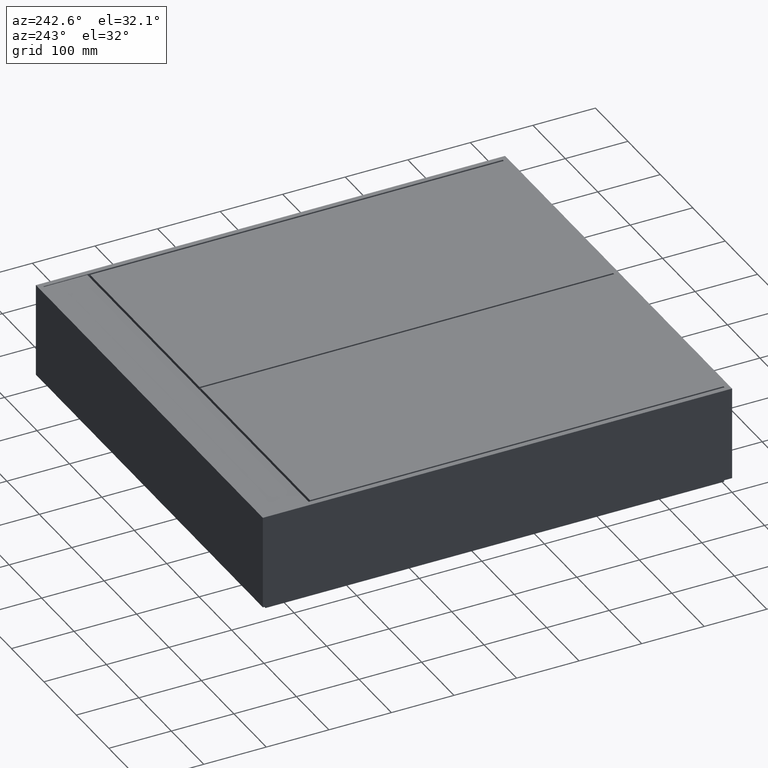
[diagram: clean part render]
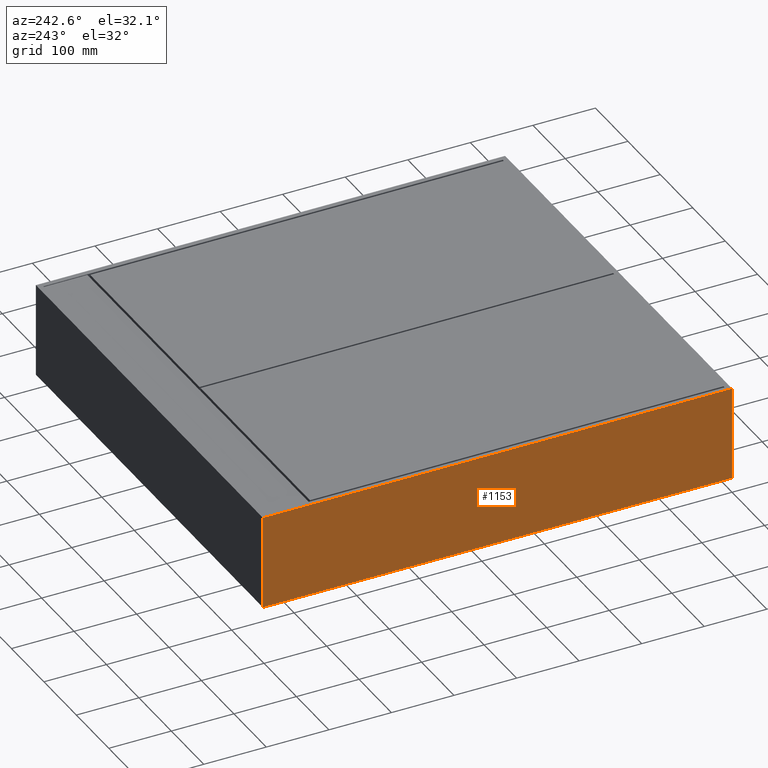
[diagram: same view with one face highlighted and labeled with its STEP entity id]
A machine part, auxiliary view. The second image highlights one B-rep face of the part: STEP entity #1153.
In plain terms, the highlighted planar face has unit normal (1, 0, -0).
Its self-contained STEP definition (entity closure, byte-faithful):
#18 = DIRECTION ( 'NONE',  ( -2.407412430484044816E-35, -1.000000000000000000, -4.877831358172164243E-34 ) ) ;
#204 = VECTOR ( 'NONE', #3315, 1000.000000000000000 ) ;
#311 = VECTOR ( 'NONE', #8339, 1000.000000000000000 ) ;
#345 = EDGE_CURVE ( 'NONE', #1377, #9204, #7827, .T. ) ;
#1106 = LINE ( 'NONE', #4716, #311 ) ;
#1153 = ADVANCED_FACE ( 'NONE', ( #3208 ), #6830, .F. ) ;
#1377 = VERTEX_POINT ( 'NONE', #1721 ) ;
#1721 = CARTESIAN_POINT ( 'NONE',  ( -8.673617379884035472E-16, 750.0000000000000000, -150.0000000000000000 ) ) ;
#2311 = DIRECTION ( 'NONE',  ( 1.000000000000000000, 2.407412430484044816E-35, -1.174295184546853926E-68 ) ) ;
#2419 = CARTESIAN_POINT ( 'NONE',  ( 0.0000000000000000000, 0.0000000000000000000, 0.0000000000000000000 ) ) ;
#2872 = DIRECTION ( 'NONE',  ( 0.0000000000000000000, 4.877831358172164243E-34, 1.000000000000000000 ) ) ;
#3208 = FACE_OUTER_BOUND ( 'NONE', #9550, .T. ) ;
#3315 = DIRECTION ( 'NONE',  ( 0.0000000000000000000, 4.877831358172164243E-34, 1.000000000000000000 ) ) ;
#3803 = ORIENTED_EDGE ( 'NONE', *, *, #345, .F. ) ;
#3929 = VERTEX_POINT ( 'NONE', #6755 ) ;
#4215 = EDGE_CURVE ( 'NONE', #3929, #9953, #7393, .T. ) ;
#4509 = LINE ( 'NONE', #8141, #10145 ) ;
#4716 = CARTESIAN_POINT ( 'NONE',  ( 0.0000000000000000000, 900.2131818450031915, 0.0000000000000000000 ) ) ;
#5947 = DIRECTION ( 'NONE',  ( 0.0000000000000000000, -4.877831358172164243E-34, -1.000000000000000000 ) ) ;
#6092 = EDGE_CURVE ( 'NONE', #9204, #9953, #1106, .T. ) ;
#6324 = ORIENTED_EDGE ( 'NONE', *, *, #6092, .F. ) ;
#6755 = CARTESIAN_POINT ( 'NONE',  ( -8.673617379884035472E-16, 0.0000000000000000000, -150.0000000000000000 ) ) ;
#6830 = PLANE ( 'NONE',  #11379 ) ;
#7203 = CARTESIAN_POINT ( 'NONE',  ( 0.0000000000000000000, 750.0000000000000000, 0.0000000000000000000 ) ) ;
#7393 = LINE ( 'NONE', #10987, #7490 ) ;
#7490 = VECTOR ( 'NONE', #2872, 1000.000000000000000 ) ;
#7827 = LINE ( 'NONE', #11419, #204 ) ;
#8141 = CARTESIAN_POINT ( 'NONE',  ( -8.673617379884035472E-16, 900.2131818450031915, -150.0000000000000000 ) ) ;
#8339 = DIRECTION ( 'NONE',  ( -2.407412430484044816E-35, -1.000000000000000000, -4.877831358172164243E-34 ) ) ;
#8816 = ORIENTED_EDGE ( 'NONE', *, *, #10893, .T. ) ;
#9204 = VERTEX_POINT ( 'NONE', #7203 ) ;
#9391 = ORIENTED_EDGE ( 'NONE', *, *, #4215, .T. ) ;
#9550 = EDGE_LOOP ( 'NONE', ( #3803, #8816, #9391, #6324 ) ) ;
#9953 = VERTEX_POINT ( 'NONE', #2419 ) ;
#10145 = VECTOR ( 'NONE', #18, 1000.000000000000000 ) ;
#10425 = CARTESIAN_POINT ( 'NONE',  ( -8.673617379884035472E-16, 900.2131818450031915, -150.0000000000000000 ) ) ;
#10893 = EDGE_CURVE ( 'NONE', #1377, #3929, #4509, .T. ) ;
#10987 = CARTESIAN_POINT ( 'NONE',  ( -8.673617379884035472E-16, 0.0000000000000000000, -150.0000000000000000 ) ) ;
#11379 = AXIS2_PLACEMENT_3D ( 'NONE', #10425, #2311, #5947 ) ;
#11419 = CARTESIAN_POINT ( 'NONE',  ( -8.673617379884035472E-16, 750.0000000000000000, -150.0000000000000000 ) ) ;